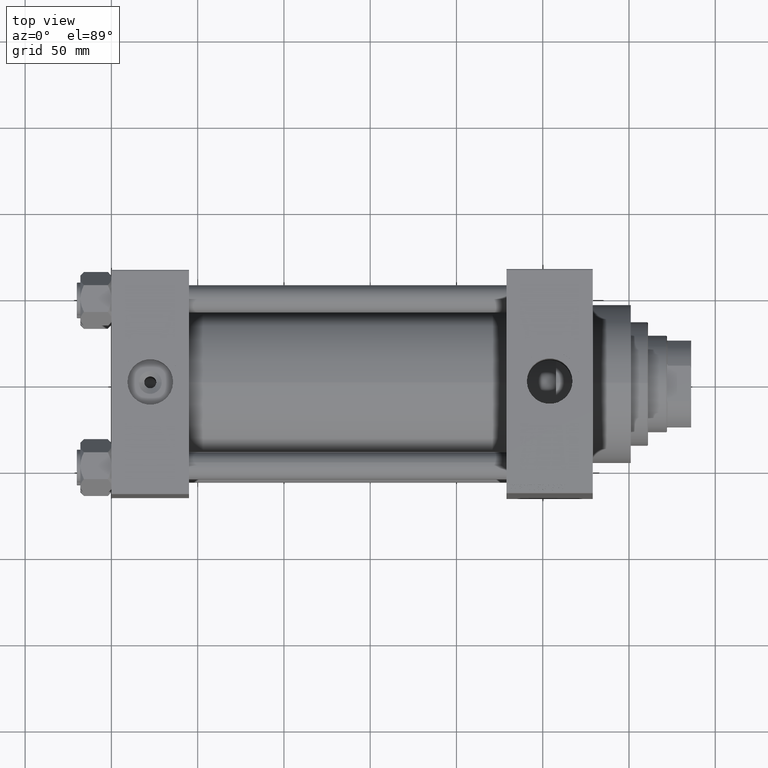
[diagram: clean part render]
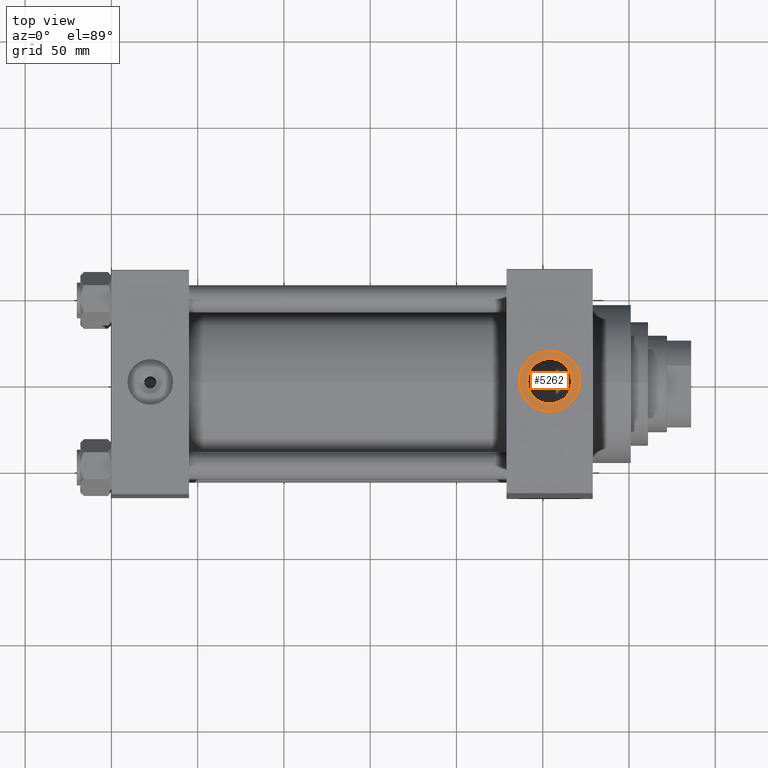
[diagram: same view with one face highlighted and labeled with its STEP entity id]
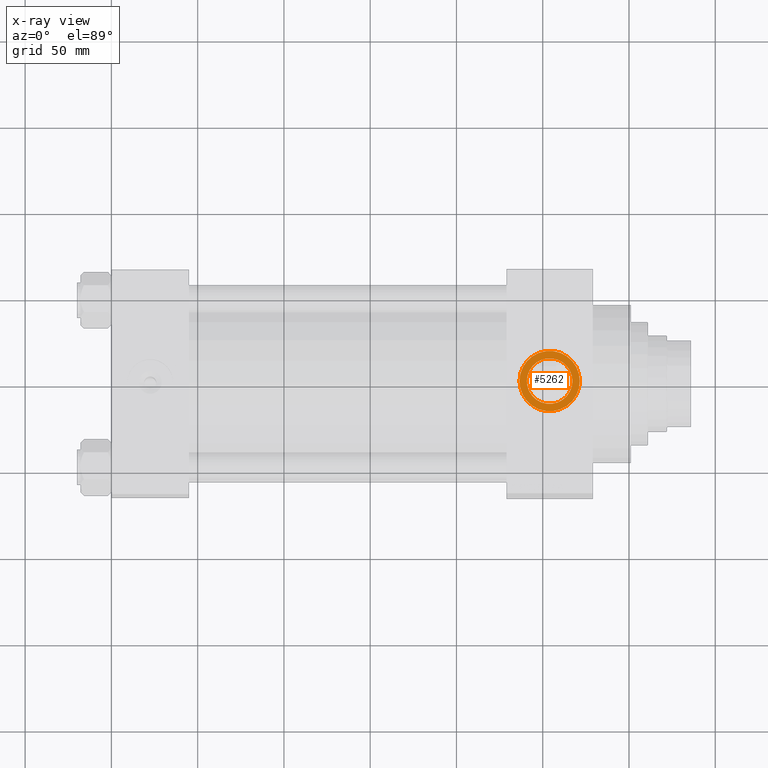
[diagram: x-ray of the same camera — body ghosted, the highlighted face saturated]
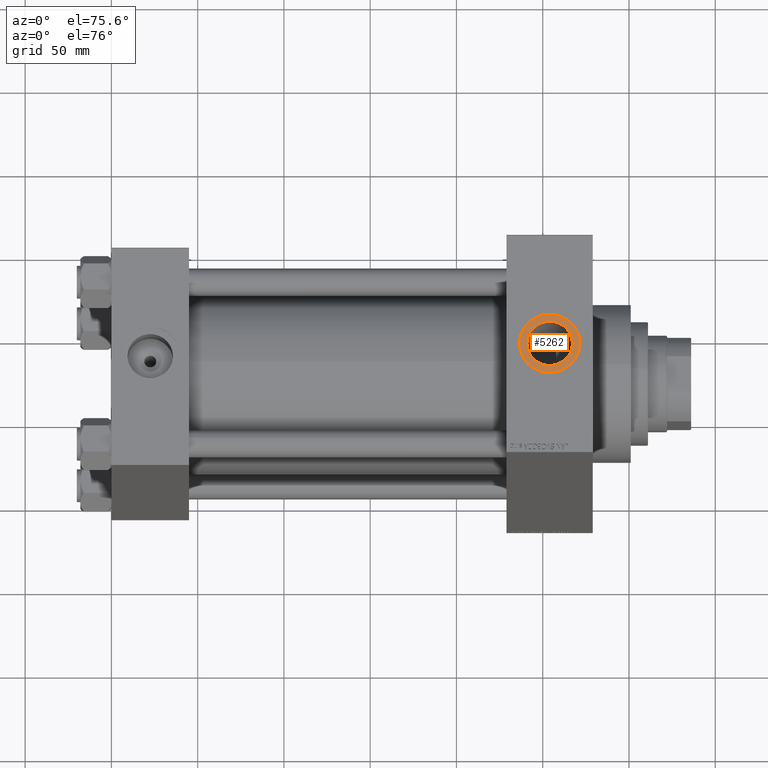
[diagram: same view with one face highlighted and labeled with its STEP entity id]
A machine part, top view. The second image highlights one B-rep face of the part: STEP entity #5262.
The next image is the same camera in x-ray: the body ghosted, the highlighted face saturated — about 0% of this face is hidden behind the body in this view.
A second angle (auxiliary view) of the same face is appended — the face is thin or edge-on in the first view.
In plain terms, the highlighted planar face has unit normal (0, 0, 1).
Its self-contained STEP definition (entity closure, byte-faithful):
#917 = CARTESIAN_POINT ( 'NONE',  ( 254.0000000000000000, 0.000000000000000000, 94.79999999999996874 ) ) ;
#1266 = EDGE_CURVE ( 'NONE', #11534, #10318, #37162, .T. ) ;
#1794 = DIRECTION ( 'NONE',  ( -0.000000000000000000, -0.000000000000000000, -1.000000000000000000 ) ) ;
#2719 = FACE_OUTER_BOUND ( 'NONE', #23826, .T. ) ;
#3894 = DIRECTION ( 'NONE',  ( 1.000000000000000000, 0.000000000000000000, 0.000000000000000000 ) ) ;
#5262 = ADVANCED_FACE ( 'NONE', ( #46893, #2719 ), #10445, .T. ) ;
#6617 = ORIENTED_EDGE ( 'NONE', *, *, #1266, .T. ) ;
#6620 = EDGE_CURVE ( 'NONE', #10318, #11534, #24055, .T. ) ;
#7756 = DIRECTION ( 'NONE',  ( 0.000000000000000000, 0.000000000000000000, 1.000000000000000000 ) ) ;
#7984 = CARTESIAN_POINT ( 'NONE',  ( 267.2200000000000273, 1.618983068472796024E-15, 94.79999999999996874 ) ) ;
#9967 = DIRECTION ( 'NONE',  ( 1.000000000000000000, 0.000000000000000000, -0.000000000000000000 ) ) ;
#10318 = VERTEX_POINT ( 'NONE', #22607 ) ;
#10445 = PLANE ( 'NONE',  #10940 ) ;
#10920 = DIRECTION ( 'NONE',  ( 0.000000000000000000, 0.000000000000000000, 1.000000000000000000 ) ) ;
#10940 = AXIS2_PLACEMENT_3D ( 'NONE', #43031, #10920, #9967 ) ;
#11534 = VERTEX_POINT ( 'NONE', #7984 ) ;
#12028 = DIRECTION ( 'NONE',  ( 0.000000000000000000, 0.000000000000000000, 1.000000000000000000 ) ) ;
#14167 = EDGE_LOOP ( 'NONE', ( #40466, #6617 ) ) ;
#15389 = AXIS2_PLACEMENT_3D ( 'NONE', #917, #12028, #42410 ) ;
#17861 = VERTEX_POINT ( 'NONE', #36131 ) ;
#18656 = AXIS2_PLACEMENT_3D ( 'NONE', #40862, #25903, #44491 ) ;
#20184 = AXIS2_PLACEMENT_3D ( 'NONE', #34864, #1794, #26893 ) ;
#22607 = CARTESIAN_POINT ( 'NONE',  ( 240.7800000000000296, 0.000000000000000000, 94.79999999999996874 ) ) ;
#23516 = VERTEX_POINT ( 'NONE', #38871 ) ;
#23826 = EDGE_LOOP ( 'NONE', ( #29236, #37699 ) ) ;
#24055 = CIRCLE ( 'NONE', #18656, 13.22000000000000952 ) ;
#25903 = DIRECTION ( 'NONE',  ( -0.000000000000000000, -0.000000000000000000, -1.000000000000000000 ) ) ;
#26893 = DIRECTION ( 'NONE',  ( 1.000000000000000000, 0.000000000000000000, 0.000000000000000000 ) ) ;
#29236 = ORIENTED_EDGE ( 'NONE', *, *, #43455, .T. ) ;
#34864 = CARTESIAN_POINT ( 'NONE',  ( 254.0000000000000000, 0.000000000000000000, 94.79999999999996874 ) ) ;
#36131 = CARTESIAN_POINT ( 'NONE',  ( 271.5000000000000000, 0.000000000000000000, 94.79999999999996874 ) ) ;
#37162 = CIRCLE ( 'NONE', #20184, 13.22000000000000952 ) ;
#37699 = ORIENTED_EDGE ( 'NONE', *, *, #41774, .T. ) ;
#38871 = CARTESIAN_POINT ( 'NONE',  ( 236.5000000000000284, 2.143131898507868248E-15, 94.79999999999996874 ) ) ;
#40466 = ORIENTED_EDGE ( 'NONE', *, *, #6620, .T. ) ;
#40862 = CARTESIAN_POINT ( 'NONE',  ( 254.0000000000000000, 0.000000000000000000, 94.79999999999996874 ) ) ;
#41529 = CARTESIAN_POINT ( 'NONE',  ( 254.0000000000000000, 0.000000000000000000, 94.79999999999996874 ) ) ;
#41774 = EDGE_CURVE ( 'NONE', #23516, #17861, #46184, .T. ) ;
#42410 = DIRECTION ( 'NONE',  ( 1.000000000000000000, 0.000000000000000000, 0.000000000000000000 ) ) ;
#43031 = CARTESIAN_POINT ( 'NONE',  ( 254.0000000000000000, 0.000000000000000000, 94.79999999999996874 ) ) ;
#43455 = EDGE_CURVE ( 'NONE', #17861, #23516, #45478, .T. ) ;
#44491 = DIRECTION ( 'NONE',  ( 1.000000000000000000, 0.000000000000000000, 0.000000000000000000 ) ) ;
#45478 = CIRCLE ( 'NONE', #47059, 17.50000000000001421 ) ;
#46184 = CIRCLE ( 'NONE', #15389, 17.50000000000001421 ) ;
#46893 = FACE_BOUND ( 'NONE', #14167, .T. ) ;
#47059 = AXIS2_PLACEMENT_3D ( 'NONE', #41529, #7756, #3894 ) ;